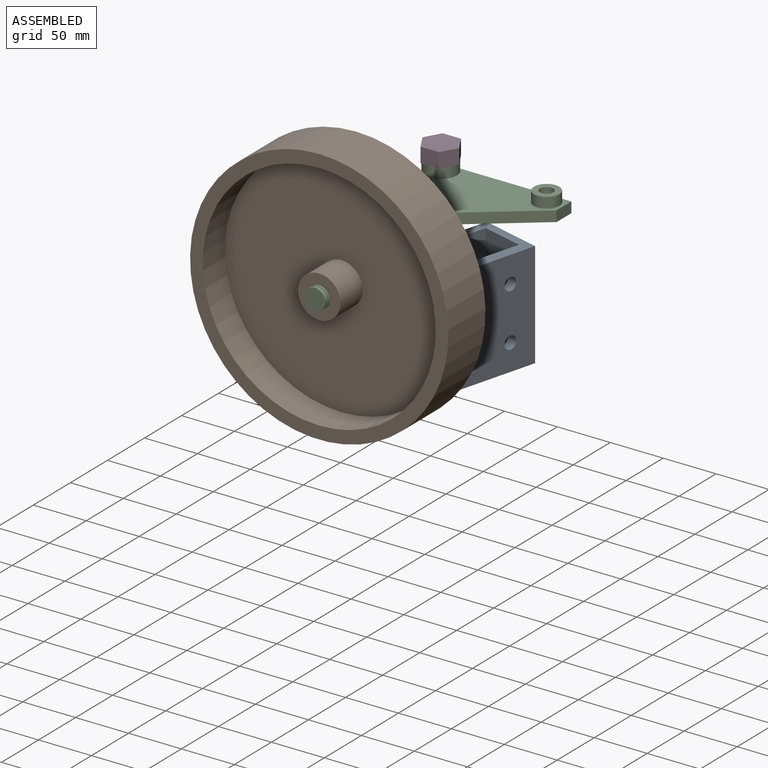
[diagram: assembled view]
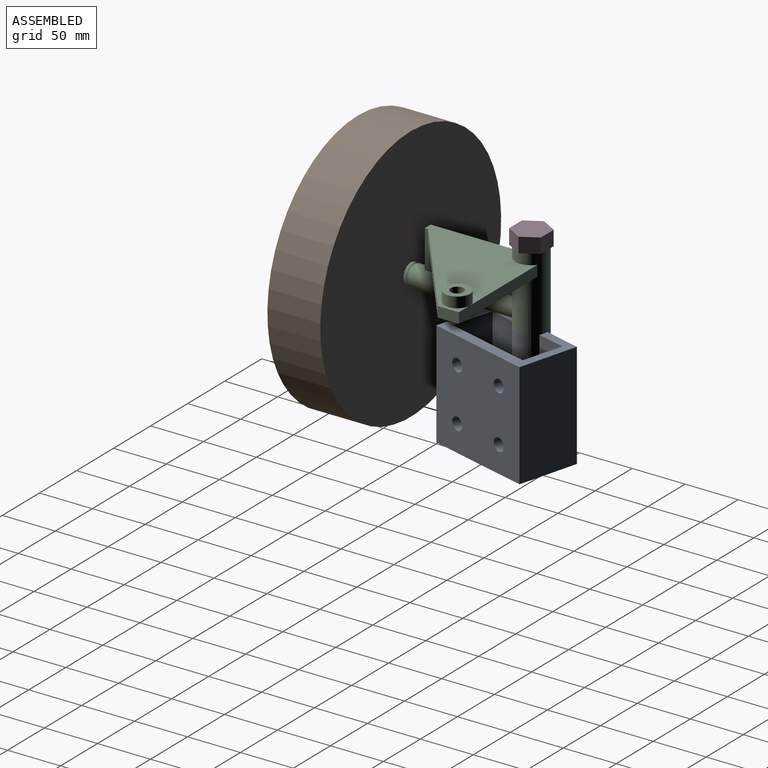
[diagram: assembled view, second angle]
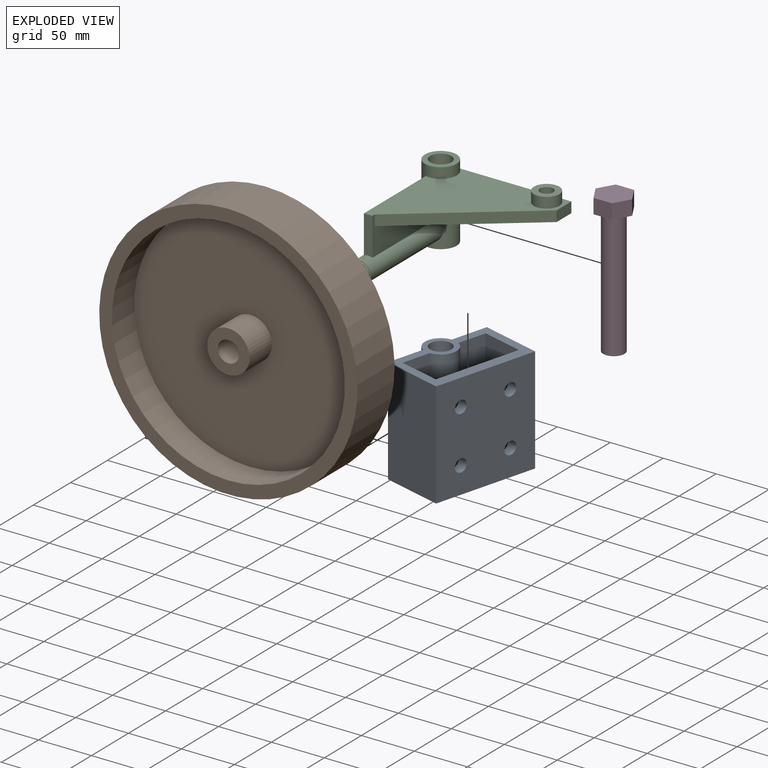
[diagram: exploded view]
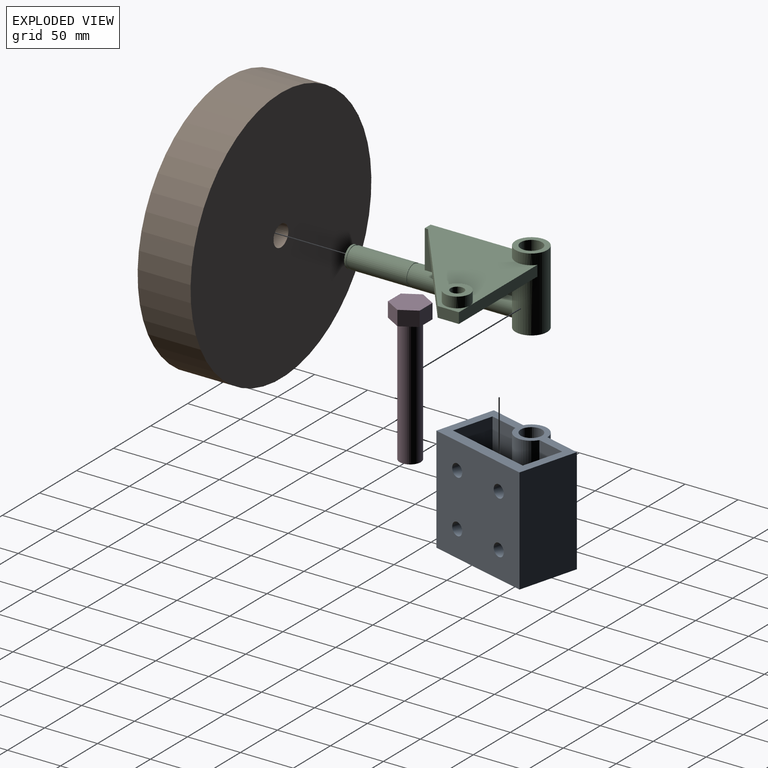
[diagram: exploded view, second angle]
ASSEMBLY  parts=4 mates=3
PART A: 19 faces, bbox 100x69x100 mm
  f0: plane 100x35.54mm, normal (0,-1,0), area 3554.3mm2, adj f1,f7,f9,f10
  f1: cylinder r=15mm len=100mm, axis (0,0,-1), area 3902.6mm2, adj f0,f2,f9,f10
  f2: plane 100x35.54mm, normal (0,-1,0), area 3554.3mm2, adj f1,f3,f9,f10
  f3: plane 100x58mm, normal (-1,0,0), area 5800mm2, adj f2,f9,f10,f16
  f4: plane 100x27.54mm, normal (0,1,0), area 2754.3mm2, adj f5,f9,f10,f17
  f5: cylinder r=15mm len=100mm, axis (0,0,-1), area 3902.6mm2, adj f4,f6,f9,f10
  f6: plane 100x27.54mm, normal (0,1,0), area 2754.3mm2, adj f5,f9,f10,f18
  f7: plane 100x58mm, normal (1,0,0), area 5800mm2, adj f0,f9,f10,f16
  f8: cylinder r=10mm len=100mm, axis (0,0,-1), area 6283.2mm2, adj f9,f10
  f9: plane 100x69mm, normal (0,0,1), area 2595.6mm2, adj f0,f1,f2,f3,f4,f5,f6,f7
  f10: plane 100x69mm, normal (0,0,-1), area 2595.6mm2, adj f0,f1,f2,f3,f4,f5,f6,f7
  f11: plane 100x84mm, normal (0,-1,0), area 7947.6mm2, adj f9,f10,f12,f13,f14,f15,f17,f18
  f12: cylinder r=6mm len=12mm, axis (0,1,0), area 377mm2, adj f11,f16
  f13: cylinder r=6mm len=12mm, axis (0,1,0), area 377mm2, adj f11,f16
  f14: cylinder r=6mm len=12mm, axis (0,1,0), area 377mm2, adj f11,f16
  f15: cylinder r=6mm len=12mm, axis (0,1,0), area 377mm2, adj f11,f16
  f16: plane 100x100mm, normal (0,1,0), area 9547.6mm2, adj f3,f7,f9,f10,f12,f13,f14,f15
  f17: plane 100x40mm, normal (1,0,0), area 4000mm2, adj f4,f9,f10,f11
  f18: plane 100x40mm, normal (-1,0,0), area 4000mm2, adj f6,f9,f10,f11
PART B: 8 faces, bbox 244x50x244 mm
  f0: plane 220x220mm, normal (0,-1,0), area 36756.6mm2, adj f4,f6
  f1: cylinder r=10mm len=50mm, axis (0,1,0), area 3141.6mm2, adj f3,f7
  f2: cylinder r=122mm len=244mm, axis (0,1,0), area 38327.4mm2, adj f3,f5
  f3: plane 244x244mm, normal (0,1,0), area 46445.3mm2, adj f1,f2
  f4: cylinder r=110mm len=220mm, axis (0,1,0), area 20734.5mm2, adj f0,f5
  f5: plane 244x244mm, normal (0,-1,0), area 8746.2mm2, adj f2,f4
  f6: cylinder r=20mm len=40mm, axis (0,1,0), area 3769.9mm2, adj f0,f7
  f7: plane 40x40mm, normal (0,-1,0), area 942.5mm2, adj f1,f6
PART C: 25 faces, bbox 130x185x70 mm
  f0: cylinder r=10mm len=55mm, axis (0,1,0), area 3455.8mm2, adj f2,f8
  f1: cylinder r=9.5mm len=19mm, axis (0,-1,0), area 119.4mm2, adj f2,f3
  f2: plane 20x20mm, normal (0,-1,0), area 30.6mm2, adj f0,f1
  f3: plane 20x20mm, normal (0,1,0), area 30.6mm2, adj f1,f5
  f4: plane 20x20mm, normal (0,-1,0), area 314.2mm2, adj f5
  f5: cylinder r=10mm len=20mm, axis (0,1,0), area 125.7mm2, adj f3,f4
  f6: cylinder r=9.5mm len=19mm, axis (0,-1,0), area 119.4mm2, adj f7,f8
  f7: plane 20x20mm, normal (0,-1,0), area 30.6mm2, adj f6,f12
  f8: plane 20x20mm, normal (0,1,0), area 30.6mm2, adj f0,f6
  f9: cylinder r=10.05mm len=70mm, axis (0,0,-1), area 4420.2mm2, adj f10,f13
  f10: plane 30x30mm, normal (0,0,-1), area 389.5mm2, adj f9,f11
  f11: cylinder r=15mm len=70mm, axis (0,0,-1), area 5641.8mm2, adj f10,f12,f13,f14,f15,f17,f18,f19
  f12: cylinder r=10mm len=97.82mm, axis (0,1,0), area 5337.1mm2, adj f7,f11,f14,f15,f16
  f13: plane 30x30mm, normal (0,0,1), area 389.5mm2, adj f9,f11
  f14: plane 83.54x35.84mm, normal (1,0,0), area 2189.6mm2, adj f11,f12,f16,f17,f19,f20
  f15: plane 83.54x35.84mm, normal (-1,0,0), area 2993.8mm2, adj f11,f12,f16,f17
  f16: plane 35.84x8mm, normal (0,-1,0), area 282.2mm2, adj f12,f14,f15,f17
  f17: plane 119x110mm, normal (0,0,1), area 7026.6mm2, adj f11,f14,f15,f16,f18,f20,f21,f23
  f18: plane 106x10mm, normal (0,1,0), area 1060mm2, adj f11,f17,f19,f21
  f19: plane 111x106.87mm, normal (0,0,-1), area 6690.8mm2, adj f11,f14,f18,f20,f21,f22
  f20: plane 111x86.87mm, normal (0.62,-0.79,0), area 1409.5mm2, adj f14,f17,f19,f21
  f21: plane 20x10mm, normal (1,0,0), area 200mm2, adj f17,f18,f19,f20
  f22: cylinder r=6.25mm len=20mm, axis (0,0,-1), area 785.4mm2, adj f19,f24
  f23: cylinder r=12mm len=24mm, axis (0,0,-1), area 754mm2, adj f17,f24
  f24: plane 24x24mm, normal (0,0,1), area 329.7mm2, adj f22,f23
PART D: 10 faces, bbox 34.6x134x30 mm
  f0: cylinder r=10mm len=120mm, axis (0,1,0), area 7539.8mm2, adj f1,f9
  f1: plane 20x20mm, normal (0,-1,0), area 314.2mm2, adj f0
  f2: plane 17.32x14mm, normal (0,0,-1), area 242.5mm2, adj f3,f7,f8,f9
  f3: plane 15x14mm, normal (-0.87,0,-0.5), area 242.5mm2, adj f2,f4,f8,f9
  f4: plane 15x14mm, normal (-0.87,0,0.5), area 242.5mm2, adj f3,f5,f8,f9
  f5: plane 17.32x14mm, normal (0,0,1), area 242.5mm2, adj f4,f6,f8,f9
  f6: plane 15x14mm, normal (0.87,0,0.5), area 242.5mm2, adj f5,f7,f8,f9
  f7: plane 15x14mm, normal (0.87,0,-0.5), area 242.5mm2, adj f2,f6,f8,f9
  f8: plane 34.64x30mm, normal (0,1,0), area 779.4mm2, adj f2,f3,f4,f5,f6,f7
  f9: plane 34.64x30mm, normal (0,-1,0), area 465.3mm2, adj f0,f2,f3,f4,f5,f6,f7
PLACE A rot(axis=(0,0,-1),105deg) t=(128.7,-130.52,43.18)mm
PLACE B rot(axis=(0,1,0),172.5deg) t=(76.54,-230.55,108.18)mm
PLACE C rot(axis=(0,1,0.02),0deg) t=(76.54,-116.55,108.18)mm
PLACE D rot(axis=(1,0,0),90deg) t=(76.54,-116.55,163.18)mm
MATE revolute A.f8 <-> C.f11  axis (0,0,1) through (76.54,-116.55,93.18)mm
MATE slider D.f0 <-> C.f9  axis (0,0,-1) through (76.54,-116.55,43.18)mm
MATE revolute C.f0 <-> B.f6  axis (0,-1,0) through (76.54,-286.55,108.18)mm
